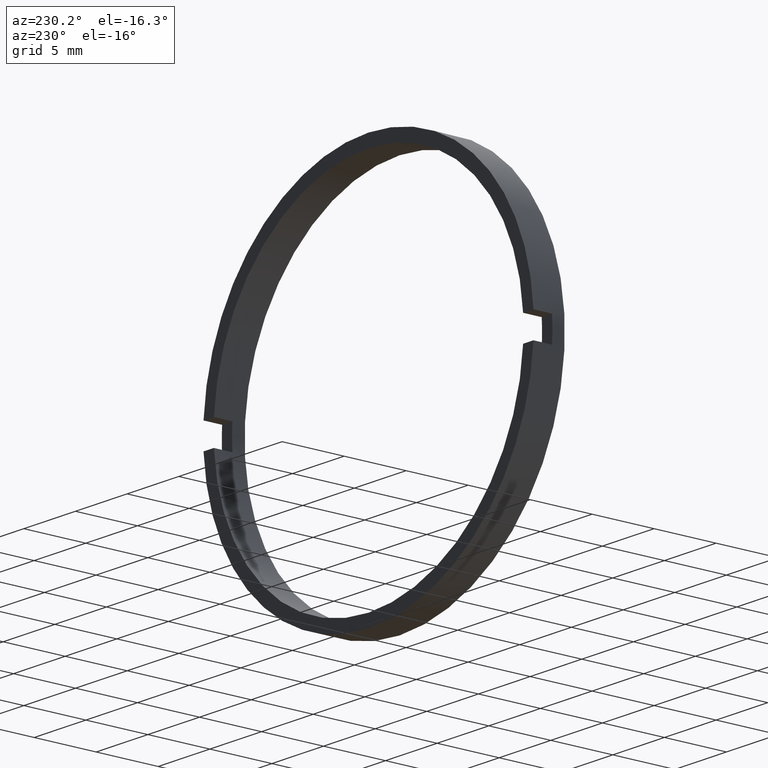
[diagram: clean part render]
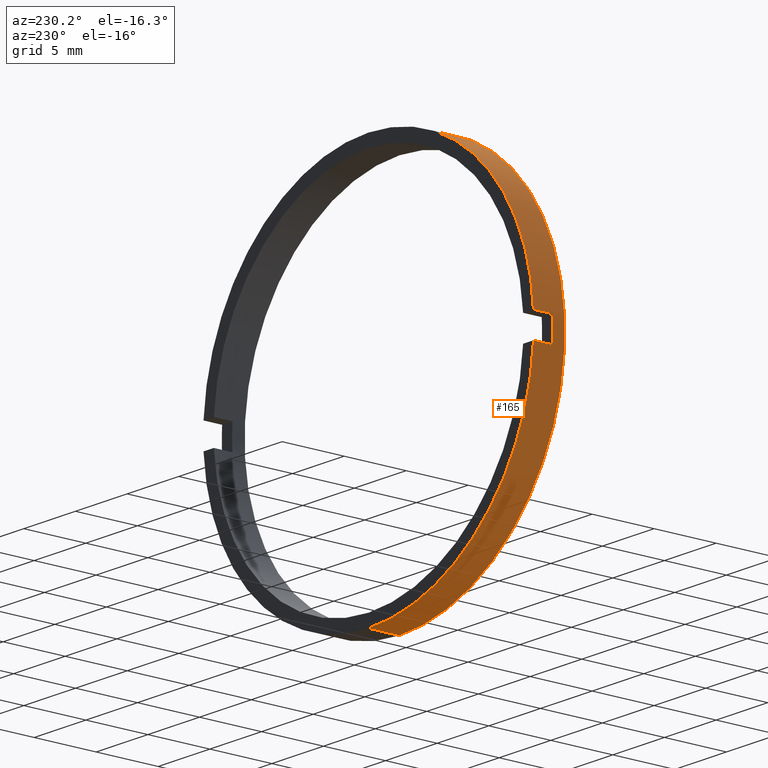
[diagram: same view with one face highlighted and labeled with its STEP entity id]
A machine part, auxiliary view. The second image highlights one B-rep face of the part: STEP entity #165.
In plain terms, the highlighted cylindrical surface (partial cylindrical patch) has radius 16 mm, axis along (-0, 1, -0).
Its self-contained STEP definition (entity closure, byte-faithful):
#17 = DIRECTION ( 'NONE',  ( 0.0000000000000000000, 0.0000000000000000000, 1.000000000000000000 ) ) ;
#22 = CARTESIAN_POINT ( 'NONE',  ( 0.0000000000000000000, -4.464249787179428900, 0.0000000000000000000 ) ) ;
#23 = CARTESIAN_POINT ( 'NONE',  ( 0.0000000000000000000, 56.26084262701361600, 0.0000000000000000000 ) ) ;
#34 = EDGE_CURVE ( 'NONE', #235, #410, #284, .T. ) ;
#36 = ORIENTED_EDGE ( 'NONE', *, *, #336, .T. ) ;
#53 = DIRECTION ( 'NONE',  ( -0.0000000000000000000, 1.000000000000000000, -0.0000000000000000000 ) ) ;
#63 = CARTESIAN_POINT ( 'NONE',  ( 1.959434878635766300E-015, 56.26084262701361600, -16.00000000000000700 ) ) ;
#66 = DIRECTION ( 'NONE',  ( -0.0000000000000000000, 1.000000000000000000, -0.0000000000000000000 ) ) ;
#67 = VECTOR ( 'NONE', #434, 1000.000000000000000 ) ;
#80 = CARTESIAN_POINT ( 'NONE',  ( 1.959434878635766300E-015, -1.964249787179434000, -16.00000000000000700 ) ) ;
#87 = DIRECTION ( 'NONE',  ( 0.0000000000000000000, 1.000000000000000000, 0.0000000000000000000 ) ) ;
#88 = ORIENTED_EDGE ( 'NONE', *, *, #451, .T. ) ;
#92 = CARTESIAN_POINT ( 'NONE',  ( 0.0000000000000000000, -4.464249787179428900, 16.00000000000000700 ) ) ;
#95 = CARTESIAN_POINT ( 'NONE',  ( 0.0000000000000000000, -3.464249787179428400, 0.0000000000000000000 ) ) ;
#103 = ORIENTED_EDGE ( 'NONE', *, *, #34, .F. ) ;
#112 = CIRCLE ( 'NONE', #494, 16.00000000000000700 ) ;
#119 = VERTEX_POINT ( 'NONE', #495 ) ;
#148 = CARTESIAN_POINT ( 'NONE',  ( -15.96871942267132400, -1.964249787179430900, 1.000000000000000000 ) ) ;
#151 = EDGE_CURVE ( 'NONE', #303, #463, #177, .T. ) ;
#155 = ORIENTED_EDGE ( 'NONE', *, *, #151, .T. ) ;
#165 = ADVANCED_FACE ( 'NONE', ( #378 ), #365, .T. ) ;
#174 = ORIENTED_EDGE ( 'NONE', *, *, #187, .F. ) ;
#177 = CIRCLE ( 'NONE', #370, 16.00000000000000700 ) ;
#180 = EDGE_LOOP ( 'NONE', ( #174, #155, #88, #103, #207, #274, #36, #341 ) ) ;
#187 = EDGE_CURVE ( 'NONE', #303, #397, #421, .T. ) ;
#191 = CARTESIAN_POINT ( 'NONE',  ( -15.96871942267132000, 56.26084262701361600, -1.000000000000000000 ) ) ;
#192 = LINE ( 'NONE', #476, #67 ) ;
#200 = EDGE_CURVE ( 'NONE', #235, #119, #353, .T. ) ;
#207 = ORIENTED_EDGE ( 'NONE', *, *, #200, .T. ) ;
#210 = AXIS2_PLACEMENT_3D ( 'NONE', #23, #242, #359 ) ;
#215 = LINE ( 'NONE', #191, #333 ) ;
#224 = CARTESIAN_POINT ( 'NONE',  ( -15.96871942267131700, -3.464249787179428400, -0.9999999999999995600 ) ) ;
#235 = VERTEX_POINT ( 'NONE', #148 ) ;
#242 = DIRECTION ( 'NONE',  ( -0.0000000000000000000, 1.000000000000000000, -0.0000000000000000000 ) ) ;
#253 = VERTEX_POINT ( 'NONE', #286 ) ;
#257 = DIRECTION ( 'NONE',  ( -0.0000000000000000000, 1.000000000000000000, -0.0000000000000000000 ) ) ;
#266 = DIRECTION ( 'NONE',  ( 0.0000000000000000000, 0.0000000000000000000, 1.000000000000000000 ) ) ;
#270 = DIRECTION ( 'NONE',  ( 0.0000000000000000000, 0.0000000000000000000, 1.000000000000000000 ) ) ;
#274 = ORIENTED_EDGE ( 'NONE', *, *, #426, .F. ) ;
#282 = AXIS2_PLACEMENT_3D ( 'NONE', #483, #53, #361 ) ;
#284 = CIRCLE ( 'NONE', #282, 16.00000000000000700 ) ;
#286 = CARTESIAN_POINT ( 'NONE',  ( -15.96871942267132400, -1.964249787179430900, -1.000000000000000000 ) ) ;
#291 = DIRECTION ( 'NONE',  ( 0.0000000000000000000, -1.000000000000000000, 0.0000000000000000000 ) ) ;
#303 = VERTEX_POINT ( 'NONE', #469 ) ;
#309 = DIRECTION ( 'NONE',  ( -0.0000000000000000000, 1.000000000000000000, -0.0000000000000000000 ) ) ;
#333 = VECTOR ( 'NONE', #257, 1000.000000000000000 ) ;
#336 = EDGE_CURVE ( 'NONE', #363, #253, #215, .T. ) ;
#341 = ORIENTED_EDGE ( 'NONE', *, *, #414, .F. ) ;
#347 = CARTESIAN_POINT ( 'NONE',  ( 0.0000000000000000000, -1.964249787179434000, 0.0000000000000000000 ) ) ;
#353 = LINE ( 'NONE', #371, #442 ) ;
#359 = DIRECTION ( 'NONE',  ( 0.0000000000000000000, 0.0000000000000000000, 1.000000000000000000 ) ) ;
#361 = DIRECTION ( 'NONE',  ( 0.0000000000000000000, 0.0000000000000000000, 1.000000000000000000 ) ) ;
#363 = VERTEX_POINT ( 'NONE', #224 ) ;
#365 = CYLINDRICAL_SURFACE ( 'NONE', #210, 16.00000000000000700 ) ;
#370 = AXIS2_PLACEMENT_3D ( 'NONE', #22, #448, #17 ) ;
#371 = CARTESIAN_POINT ( 'NONE',  ( -15.96871942267132000, 56.26084262701361600, 1.000000000000000000 ) ) ;
#378 = FACE_OUTER_BOUND ( 'NONE', #180, .T. ) ;
#391 = CIRCLE ( 'NONE', #498, 16.00000000000000700 ) ;
#397 = VERTEX_POINT ( 'NONE', #80 ) ;
#410 = VERTEX_POINT ( 'NONE', #428 ) ;
#414 = EDGE_CURVE ( 'NONE', #397, #253, #112, .T. ) ;
#421 = LINE ( 'NONE', #63, #466 ) ;
#426 = EDGE_CURVE ( 'NONE', #363, #119, #391, .T. ) ;
#428 = CARTESIAN_POINT ( 'NONE',  ( 0.0000000000000000000, -1.964249787179434000, 16.00000000000000700 ) ) ;
#434 = DIRECTION ( 'NONE',  ( -0.0000000000000000000, 1.000000000000000000, -0.0000000000000000000 ) ) ;
#442 = VECTOR ( 'NONE', #291, 1000.000000000000000 ) ;
#448 = DIRECTION ( 'NONE',  ( -0.0000000000000000000, 1.000000000000000000, -0.0000000000000000000 ) ) ;
#451 = EDGE_CURVE ( 'NONE', #463, #410, #192, .T. ) ;
#463 = VERTEX_POINT ( 'NONE', #92 ) ;
#466 = VECTOR ( 'NONE', #66, 1000.000000000000000 ) ;
#469 = CARTESIAN_POINT ( 'NONE',  ( 1.959434878635766300E-015, -4.464249787179428900, -16.00000000000000700 ) ) ;
#476 = CARTESIAN_POINT ( 'NONE',  ( 0.0000000000000000000, 56.26084262701361600, 16.00000000000000700 ) ) ;
#483 = CARTESIAN_POINT ( 'NONE',  ( 0.0000000000000000000, -1.964249787179434000, 0.0000000000000000000 ) ) ;
#494 = AXIS2_PLACEMENT_3D ( 'NONE', #347, #309, #266 ) ;
#495 = CARTESIAN_POINT ( 'NONE',  ( -15.96871942267131700, -3.464249787179428400, 0.9999999999999995600 ) ) ;
#498 = AXIS2_PLACEMENT_3D ( 'NONE', #95, #87, #270 ) ;